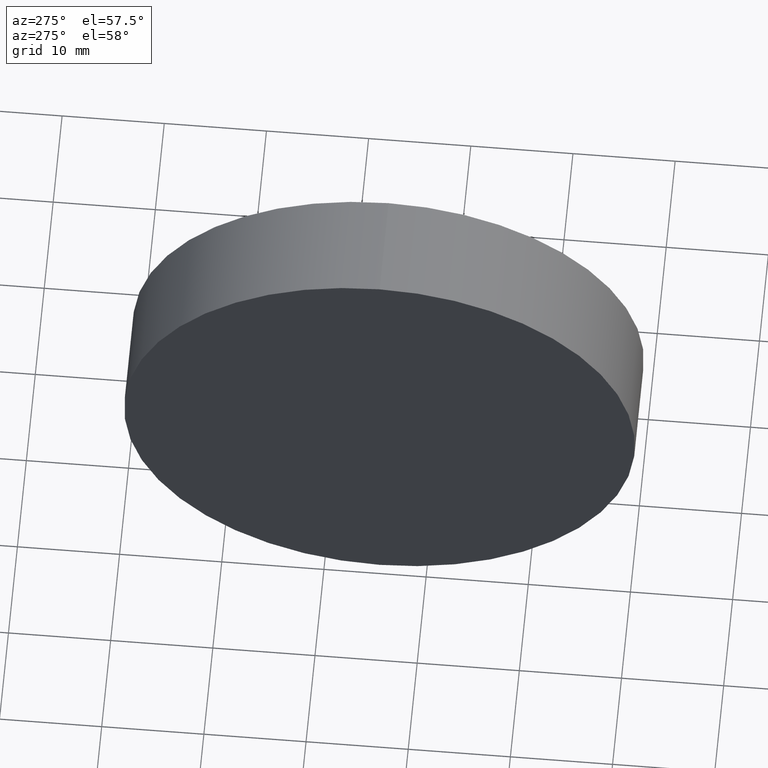
[diagram: clean part render]
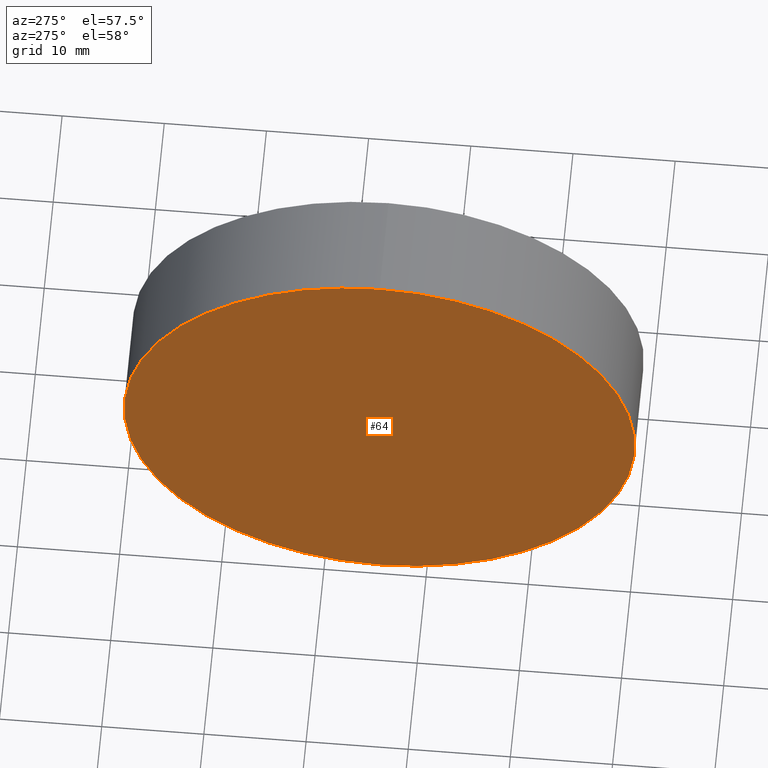
[diagram: same view with one face highlighted and labeled with its STEP entity id]
A machine part, auxiliary view. The second image highlights one B-rep face of the part: STEP entity #64.
In plain terms, the highlighted planar face has unit normal (1, 0, 0).
Its self-contained STEP definition (entity closure, byte-faithful):
#6 = AXIS2_PLACEMENT_3D ( 'NONE', #86, #25, #34 ) ;
#14 = PLANE ( 'NONE',  #113 ) ;
#24 = ORIENTED_EDGE ( 'NONE', *, *, #122, .T. ) ;
#25 = DIRECTION ( 'NONE',  ( -1.000000000000000000, -0.0000000000000000000, -0.0000000000000000000 ) ) ;
#28 = DIRECTION ( 'NONE',  ( 0.0000000000000000000, 0.0000000000000000000, 1.000000000000000000 ) ) ;
#32 = CIRCLE ( 'NONE', #60, 24.99999999999996800 ) ;
#34 = DIRECTION ( 'NONE',  ( 0.0000000000000000000, 0.0000000000000000000, 1.000000000000000000 ) ) ;
#37 = DIRECTION ( 'NONE',  ( 0.0000000000000000000, 0.0000000000000000000, -1.000000000000000000 ) ) ;
#43 = VERTEX_POINT ( 'NONE', #66 ) ;
#58 = EDGE_CURVE ( 'NONE', #106, #43, #32, .T. ) ;
#59 = DIRECTION ( 'NONE',  ( -1.000000000000000000, -0.0000000000000000000, -0.0000000000000000000 ) ) ;
#60 = AXIS2_PLACEMENT_3D ( 'NONE', #103, #59, #28 ) ;
#64 = ADVANCED_FACE ( 'NONE', ( #120 ), #14, .F. ) ;
#65 = EDGE_LOOP ( 'NONE', ( #92, #24 ) ) ;
#66 = CARTESIAN_POINT ( 'NONE',  ( 520.3142809851219700, 154.5863586980308400, -24.99999999999996800 ) ) ;
#83 = DIRECTION ( 'NONE',  ( 1.000000000000000000, 0.0000000000000000000, 0.0000000000000000000 ) ) ;
#86 = CARTESIAN_POINT ( 'NONE',  ( 520.3142809851219700, 154.5863586980308400, 0.0000000000000000000 ) ) ;
#92 = ORIENTED_EDGE ( 'NONE', *, *, #58, .T. ) ;
#96 = CARTESIAN_POINT ( 'NONE',  ( 520.3142809851219700, 154.5863586980308100, 0.0000000000000000000 ) ) ;
#102 = CARTESIAN_POINT ( 'NONE',  ( 520.3142809851219700, 154.5863586980308400, 24.99999999999996800 ) ) ;
#103 = CARTESIAN_POINT ( 'NONE',  ( 520.3142809851219700, 154.5863586980308400, 0.0000000000000000000 ) ) ;
#106 = VERTEX_POINT ( 'NONE', #102 ) ;
#113 = AXIS2_PLACEMENT_3D ( 'NONE', #96, #83, #37 ) ;
#114 = CIRCLE ( 'NONE', #6, 24.99999999999996800 ) ;
#120 = FACE_OUTER_BOUND ( 'NONE', #65, .T. ) ;
#122 = EDGE_CURVE ( 'NONE', #43, #106, #114, .T. ) ;